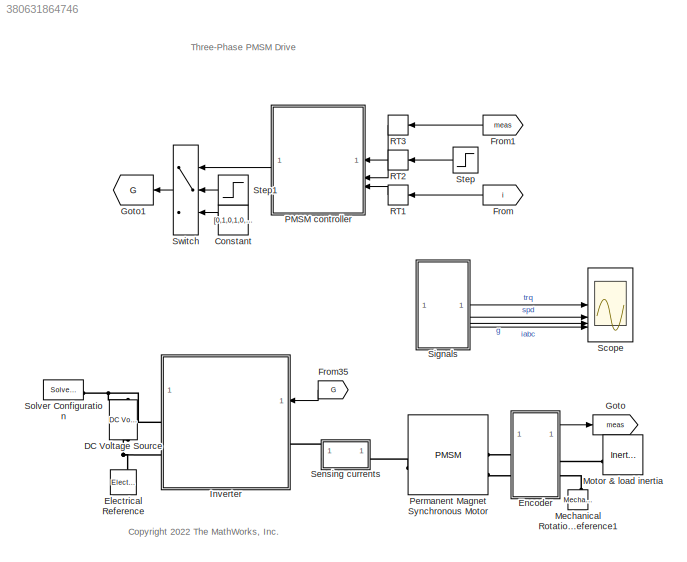
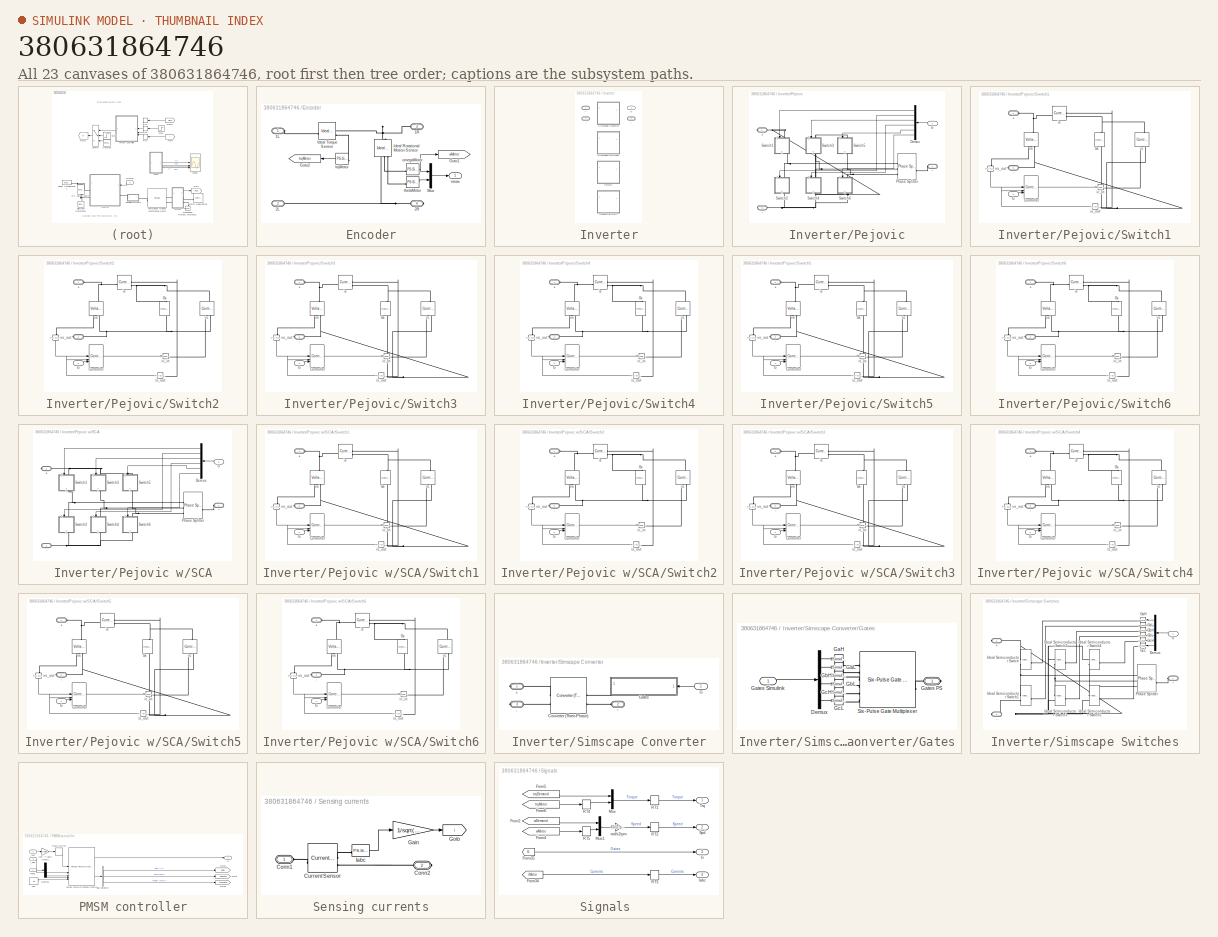
[diagram: thumbnail index - all 23 canvases of the model, root first then tree order]
MODEL slx_380631864746
KIND model
CONFIG AbsTol = 1e-3
CONFIG EnableMultiTasking = off
CONFIG FixedStep = Ts
CONFIG MaxStep = auto
CONFIG MinStep = auto
CONFIG PreLoadFcn = control_data;\npmsm_data;
CONFIG RelTol = 1e-3
CONFIG SampleTimeConstraint = Unconstrained
CONFIG SolverName = FixedStepAuto
CONFIG StartTime = 0.0
CONFIG StopTime = 0.6
BLOCK [Constant] Constant
  SampleTime = -1
  Value = [0,1,0,1,0,1]
BLOCK [Reference] DC Voltage Source  REF=fl_lib/Electrical/Electrical Sources/DC Voltage Source
  NameLocation = right
  SourceBlock = fl_lib/Electrical/Electrical Sources/DC Voltage Source
  SourceType = DC Voltage Source
BLOCK [Reference] Electrical Reference  REF=fl_lib/Electrical/Electrical Elements/Electrical Reference
  NameLocation = right
  SourceBlock = fl_lib/Electrical/Electrical Elements/Electrical Reference
  SourceType = Electrical Reference
BLOCK [SubSystem] Encoder
BLOCK [PMIOPort] Encoder/1L
  Side = Left
BLOCK [PMIOPort] Encoder/1R
  Port = 3
  Side = Right
BLOCK [PMIOPort] Encoder/2L
  Port = 2
  Side = Left
BLOCK [PMIOPort] Encoder/2R
  Port = 4
  Side = Right
BLOCK [Goto] Encoder/Goto1
  GotoTag = wMotor
  NameLocation = top
  TagVisibility = global
BLOCK [Goto] Encoder/Goto2
  GotoTag = trqMotor
  TagVisibility = global
BLOCK [Reference] Encoder/Ideal Rotational Motion Sensor  REF=fl_lib/Mechanical/Mechanical Sensors/Ideal Rotational
Motion Sensor
  NameLocation = right
  SourceBlock = fl_lib/Mechanical/Mechanical Sensors/Ideal Rotational\nMotion Sensor
  SourceType = Ideal Rotational\nMotion Sensor
BLOCK [Reference] Encoder/Ideal Torque Sensor  REF=fl_lib/Mechanical/Mechanical Sensors/Ideal Torque Sensor
  SourceBlock = fl_lib/Mechanical/Mechanical Sensors/Ideal Torque Sensor
  SourceType = Ideal Torque Sensor
BLOCK [Mux] Encoder/Mux
  DisplayOption = bar
  Inputs = 2
BLOCK [Outport] Encoder/meas
  VectorParamsAs1DForOutWhenUnconnected = off
BLOCK [Reference] Encoder/omegaMotor  REF=nesl_utility/PS-Simulink
Converter
  SourceBlock = nesl_utility/PS-Simulink\nConverter
  SourceType = PS-Simulink\nConverter
BLOCK [Reference] Encoder/thetaMotor  REF=nesl_utility/PS-Simulink
Converter
  SourceBlock = nesl_utility/PS-Simulink\nConverter
  SourceType = PS-Simulink\nConverter
BLOCK [Reference] Encoder/trqMotor  REF=nesl_utility/PS-Simulink
Converter
  SourceBlock = nesl_utility/PS-Simulink\nConverter
  SourceType = PS-Simulink\nConverter
BLOCK [From] From
  GotoTag = i
  TagVisibility = global
BLOCK [From] From1
  GotoTag = meas
  TagVisibility = global
BLOCK [From] From35
  GotoTag = G
  TagVisibility = global
BLOCK [Goto] Goto
  GotoTag = meas
  TagVisibility = global
BLOCK [Goto] Goto1
  GotoTag = G
  TagVisibility = global
BLOCK [SubSystem] Inverter
  LabelModeActiveChoice = PejovicSCA
  Variant = on
  VariantControl = Choice
  VariantControlMode = label
BLOCK [PMIOPort] Inverter/+
  Side = Right
BLOCK [PMIOPort] Inverter/-
  Port = 2
  Side = Right
BLOCK [Inport] Inverter/G
BLOCK [SubSystem] Inverter/Pejovic
  VariantControl = Pejovic
BLOCK [SubSystem] Inverter/Pejovic w//SCA
  VariantControl = PejovicSCA
BLOCK [PMIOPort] Inverter/Pejovic w//SCA/+
  Side = Right
BLOCK [PMIOPort] Inverter/Pejovic w//SCA/-
  Port = 3
  Side = Right
BLOCK [Demux] Inverter/Pejovic w//SCA/Demux
  Outputs = 6
BLOCK [Inport] Inverter/Pejovic w//SCA/G
BLOCK [Reference] Inverter/Pejovic w//SCA/Phase Splitter  REF=ee_lib/Connectors &
References/Phase Splitter
  SourceBlock = ee_lib/Connectors &\nReferences/Phase Splitter
  SourceType = Phase Splitter
BLOCK [SubSystem] Inverter/Pejovic w//SCA/Switch1
  CopyFcn = set_param(gcb, 'LinkStatus', 'none');
BLOCK [PMIOPort] Inverter/Pejovic w//SCA/Switch1/+
  Side = Left
BLOCK [PMIOPort] Inverter/Pejovic w//SCA/Switch1/-
  NameLocation = top
  Port = 2
  Side = Right
BLOCK [Reference] Inverter/Pejovic w//SCA/Switch1/Controller  REF=SimscapeFPGAHIL_lib/Linearized Switch Models/Switch/Controller
  SourceBlock = SimscapeFPGAHIL_lib/Linearized Switch Models/Switch/Controller
BLOCK [Inport] Inverter/Pejovic w//SCA/Switch1/G
BLOCK [Reference] Inverter/Pejovic w//SCA/Switch1/Gs  REF=fl_lib/Electrical/Electrical Elements/Resistor
  LibrarySourceBlock = SimscapeFPGAHIL_lib/Linearized Switch Models/Switch/Gs
  NameLocation = right
  SourceBlock = fl_lib/Electrical/Electrical Elements/Resistor
  SourceType = Resistor
BLOCK [Reference] Inverter/Pejovic w//SCA/Switch1/ic  REF=fl_lib/Electrical/Electrical Sources/Controlled Current
Source
  LibrarySourceBlock = SimscapeFPGAHIL_lib/Linearized Switch Models/Switch/ic
  NameLocation = right
  SourceBlock = fl_lib/Electrical/Electrical Sources/Controlled Current\nSource
  SourceType = Controlled Current\nSource
BLOCK [Reference] Inverter/Pejovic w//SCA/Switch1/ic_in  REF=nesl_utility/Simulink-PS
Converter
  LibrarySourceBlock = SimscapeFPGAHIL_lib/Linearized Switch Models/Switch/ic_in
  SourceBlock = nesl_utility/Simulink-PS\nConverter
  SourceType = Simulink-PS\nConverter
BLOCK [Reference] Inverter/Pejovic w//SCA/Switch1/is  REF=fl_lib/Electrical/Electrical Sensors/Current Sensor
  LibrarySourceBlock = SimscapeFPGAHIL_lib/Linearized Switch Models/Switch/is
  SourceBlock = fl_lib/Electrical/Electrical Sensors/Current Sensor
  SourceType = Current Sensor
BLOCK [Reference] Inverter/Pejovic w//SCA/Switch1/is_out  REF=nesl_utility/PS-Simulink
Converter
  LibrarySourceBlock = SimscapeFPGAHIL_lib/Linearized Switch Models/Switch/is_out
  SourceBlock = nesl_utility/PS-Simulink\nConverter
  SourceType = PS-Simulink\nConverter
BLOCK [Reference] Inverter/Pejovic w//SCA/Switch1/vs  REF=fl_lib/Electrical/Electrical Sensors/Voltage Sensor
  LibrarySourceBlock = SimscapeFPGAHIL_lib/Linearized Switch Models/Switch/vs
  NameLocation = left
  SourceBlock = fl_lib/Electrical/Electrical Sensors/Voltage Sensor
  SourceType = Voltage Sensor
BLOCK [Reference] Inverter/Pejovic w//SCA/Switch1/vs_out  REF=nesl_utility/PS-Simulink
Converter
  LibrarySourceBlock = SimscapeFPGAHIL_lib/Linearized Switch Models/Switch/vs_out
  NameLocation = left
  SourceBlock = nesl_utility/PS-Simulink\nConverter
  SourceType = PS-Simulink\nConverter
BLOCK [SubSystem] Inverter/Pejovic w//SCA/Switch2
  CopyFcn = set_param(gcb, 'LinkStatus', 'none');
BLOCK [PMIOPort] Inverter/Pejovic w//SCA/Switch2/+
  Side = Left
BLOCK [PMIOPort] Inverter/Pejovic w//SCA/Switch2/-
  NameLocation = top
  Port = 2
  Side = Right
BLOCK [Reference] Inverter/Pejovic w//SCA/Switch2/Controller  REF=SimscapeFPGAHIL_lib/Linearized Switch Models/Switch/Controller
  SourceBlock = SimscapeFPGAHIL_lib/Linearized Switch Models/Switch/Controller
BLOCK [Inport] Inverter/Pejovic w//SCA/Switch2/G
BLOCK [Reference] Inverter/Pejovic w//SCA/Switch2/Gs  REF=fl_lib/Electrical/Electrical Elements/Resistor
  LibrarySourceBlock = SimscapeFPGAHIL_lib/Linearized Switch Models/Switch/Gs
  NameLocation = right
  SourceBlock = fl_lib/Electrical/Electrical Elements/Resistor
  SourceType = Resistor
BLOCK [Reference] Inverter/Pejovic w//SCA/Switch2/ic  REF=fl_lib/Electrical/Electrical Sources/Controlled Current
Source
  LibrarySourceBlock = SimscapeFPGAHIL_lib/Linearized Switch Models/Switch/ic
  NameLocation = right
  SourceBlock = fl_lib/Electrical/Electrical Sources/Controlled Current\nSource
  SourceType = Controlled Current\nSource
BLOCK [Reference] Inverter/Pejovic w//SCA/Switch2/ic_in  REF=nesl_utility/Simulink-PS
Converter
  LibrarySourceBlock = SimscapeFPGAHIL_lib/Linearized Switch Models/Switch/ic_in
  SourceBlock = nesl_utility/Simulink-PS\nConverter
  SourceType = Simulink-PS\nConverter
BLOCK [Reference] Inverter/Pejovic w//SCA/Switch2/is  REF=fl_lib/Electrical/Electrical Sensors/Current Sensor
  LibrarySourceBlock = SimscapeFPGAHIL_lib/Linearized Switch Models/Switch/is
  SourceBlock = fl_lib/Electrical/Electrical Sensors/Current Sensor
  SourceType = Current Sensor
BLOCK [Reference] Inverter/Pejovic w//SCA/Switch2/is_out  REF=nesl_utility/PS-Simulink
Converter
  LibrarySourceBlock = SimscapeFPGAHIL_lib/Linearized Switch Models/Switch/is_out
  SourceBlock = nesl_utility/PS-Simulink\nConverter
  SourceType = PS-Simulink\nConverter
BLOCK [Reference] Inverter/Pejovic w//SCA/Switch2/vs  REF=fl_lib/Electrical/Electrical Sensors/Voltage Sensor
  LibrarySourceBlock = SimscapeFPGAHIL_lib/Linearized Switch Models/Switch/vs
  NameLocation = left
  SourceBlock = fl_lib/Electrical/Electrical Sensors/Voltage Sensor
  SourceType = Voltage Sensor
BLOCK [Reference] Inverter/Pejovic w//SCA/Switch2/vs_out  REF=nesl_utility/PS-Simulink
Converter
  LibrarySourceBlock = SimscapeFPGAHIL_lib/Linearized Switch Models/Switch/vs_out
  NameLocation = left
  SourceBlock = nesl_utility/PS-Simulink\nConverter
  SourceType = PS-Simulink\nConverter
BLOCK [SubSystem] Inverter/Pejovic w//SCA/Switch3
  CopyFcn = set_param(gcb, 'LinkStatus', 'none');
BLOCK [PMIOPort] Inverter/Pejovic w//SCA/Switch3/+
  Side = Left
BLOCK [PMIOPort] Inverter/Pejovic w//SCA/Switch3/-
  NameLocation = top
  Port = 2
  Side = Right
BLOCK [Reference] Inverter/Pejovic w//SCA/Switch3/Controller  REF=SimscapeFPGAHIL_lib/Linearized Switch Models/Switch/Controller
  SourceBlock = SimscapeFPGAHIL_lib/Linearized Switch Models/Switch/Controller
BLOCK [Inport] Inverter/Pejovic w//SCA/Switch3/G
BLOCK [Reference] Inverter/Pejovic w//SCA/Switch3/Gs  REF=fl_lib/Electrical/Electrical Elements/Resistor
  LibrarySourceBlock = SimscapeFPGAHIL_lib/Linearized Switch Models/Switch/Gs
  NameLocation = right
  SourceBlock = fl_lib/Electrical/Electrical Elements/Resistor
  SourceType = Resistor
BLOCK [Reference] Inverter/Pejovic w//SCA/Switch3/ic  REF=fl_lib/Electrical/Electrical Sources/Controlled Current
Source
  LibrarySourceBlock = SimscapeFPGAHIL_lib/Linearized Switch Models/Switch/ic
  NameLocation = right
  SourceBlock = fl_lib/Electrical/Electrical Sources/Controlled Current\nSource
  SourceType = Controlled Current\nSource
BLOCK [Reference] Inverter/Pejovic w//SCA/Switch3/ic_in  REF=nesl_utility/Simulink-PS
Converter
  LibrarySourceBlock = SimscapeFPGAHIL_lib/Linearized Switch Models/Switch/ic_in
  SourceBlock = nesl_utility/Simulink-PS\nConverter
  SourceType = Simulink-PS\nConverter
BLOCK [Reference] Inverter/Pejovic w//SCA/Switch3/is  REF=fl_lib/Electrical/Electrical Sensors/Current Sensor
  LibrarySourceBlock = SimscapeFPGAHIL_lib/Linearized Switch Models/Switch/is
  SourceBlock = fl_lib/Electrical/Electrical Sensors/Current Sensor
  SourceType = Current Sensor
BLOCK [Reference] Inverter/Pejovic w//SCA/Switch3/is_out  REF=nesl_utility/PS-Simulink
Converter
  LibrarySourceBlock = SimscapeFPGAHIL_lib/Linearized Switch Models/Switch/is_out
  SourceBlock = nesl_utility/PS-Simulink\nConverter
  SourceType = PS-Simulink\nConverter
BLOCK [Reference] Inverter/Pejovic w//SCA/Switch3/vs  REF=fl_lib/Electrical/Electrical Sensors/Voltage Sensor
  LibrarySourceBlock = SimscapeFPGAHIL_lib/Linearized Switch Models/Switch/vs
  NameLocation = left
  SourceBlock = fl_lib/Electrical/Electrical Sensors/Voltage Sensor
  SourceType = Voltage Sensor
BLOCK [Reference] Inverter/Pejovic w//SCA/Switch3/vs_out  REF=nesl_utility/PS-Simulink
Converter
  LibrarySourceBlock = SimscapeFPGAHIL_lib/Linearized Switch Models/Switch/vs_out
  NameLocation = left
  SourceBlock = nesl_utility/PS-Simulink\nConverter
  SourceType = PS-Simulink\nConverter
BLOCK [SubSystem] Inverter/Pejovic w//SCA/Switch4
  CopyFcn = set_param(gcb, 'LinkStatus', 'none');
BLOCK [PMIOPort] Inverter/Pejovic w//SCA/Switch4/+
  Side = Left
BLOCK [PMIOPort] Inverter/Pejovic w//SCA/Switch4/-
  NameLocation = top
  Port = 2
  Side = Right
BLOCK [Reference] Inverter/Pejovic w//SCA/Switch4/Controller  REF=SimscapeFPGAHIL_lib/Linearized Switch Models/Switch/Controller
  SourceBlock = SimscapeFPGAHIL_lib/Linearized Switch Models/Switch/Controller
BLOCK [Inport] Inverter/Pejovic w//SCA/Switch4/G
BLOCK [Reference] Inverter/Pejovic w//SCA/Switch4/Gs  REF=fl_lib/Electrical/Electrical Elements/Resistor
  LibrarySourceBlock = SimscapeFPGAHIL_lib/Linearized Switch Models/Switch/Gs
  NameLocation = right
  SourceBlock = fl_lib/Electrical/Electrical Elements/Resistor
  SourceType = Resistor
BLOCK [Reference] Inverter/Pejovic w//SCA/Switch4/ic  REF=fl_lib/Electrical/Electrical Sources/Controlled Current
Source
  LibrarySourceBlock = SimscapeFPGAHIL_lib/Linearized Switch Models/Switch/ic
  NameLocation = right
  SourceBlock = fl_lib/Electrical/Electrical Sources/Controlled Current\nSource
  SourceType = Controlled Current\nSource
BLOCK [Reference] Inverter/Pejovic w//SCA/Switch4/ic_in  REF=nesl_utility/Simulink-PS
Converter
  LibrarySourceBlock = SimscapeFPGAHIL_lib/Linearized Switch Models/Switch/ic_in
  SourceBlock = nesl_utility/Simulink-PS\nConverter
  SourceType = Simulink-PS\nConverter
BLOCK [Reference] Inverter/Pejovic w//SCA/Switch4/is  REF=fl_lib/Electrical/Electrical Sensors/Current Sensor
  LibrarySourceBlock = SimscapeFPGAHIL_lib/Linearized Switch Models/Switch/is
  SourceBlock = fl_lib/Electrical/Electrical Sensors/Current Sensor
  SourceType = Current Sensor
BLOCK [Reference] Inverter/Pejovic w//SCA/Switch4/is_out  REF=nesl_utility/PS-Simulink
Converter
  LibrarySourceBlock = SimscapeFPGAHIL_lib/Linearized Switch Models/Switch/is_out
  SourceBlock = nesl_utility/PS-Simulink\nConverter
  SourceType = PS-Simulink\nConverter
BLOCK [Reference] Inverter/Pejovic w//SCA/Switch4/vs  REF=fl_lib/Electrical/Electrical Sensors/Voltage Sensor
  LibrarySourceBlock = SimscapeFPGAHIL_lib/Linearized Switch Models/Switch/vs
  NameLocation = left
  SourceBlock = fl_lib/Electrical/Electrical Sensors/Voltage Sensor
  SourceType = Voltage Sensor
BLOCK [Reference] Inverter/Pejovic w//SCA/Switch4/vs_out  REF=nesl_utility/PS-Simulink
Converter
  LibrarySourceBlock = SimscapeFPGAHIL_lib/Linearized Switch Models/Switch/vs_out
  NameLocation = left
  SourceBlock = nesl_utility/PS-Simulink\nConverter
  SourceType = PS-Simulink\nConverter
BLOCK [SubSystem] Inverter/Pejovic w//SCA/Switch5
  CopyFcn = set_param(gcb, 'LinkStatus', 'none');
BLOCK [PMIOPort] Inverter/Pejovic w//SCA/Switch5/+
  Side = Left
BLOCK [PMIOPort] Inverter/Pejovic w//SCA/Switch5/-
  NameLocation = top
  Port = 2
  Side = Right
BLOCK [Reference] Inverter/Pejovic w//SCA/Switch5/Controller  REF=SimscapeFPGAHIL_lib/Linearized Switch Models/Switch/Controller
  SourceBlock = SimscapeFPGAHIL_lib/Linearized Switch Models/Switch/Controller
BLOCK [Inport] Inverter/Pejovic w//SCA/Switch5/G
BLOCK [Reference] Inverter/Pejovic w//SCA/Switch5/Gs  REF=fl_lib/Electrical/Electrical Elements/Resistor
  LibrarySourceBlock = SimscapeFPGAHIL_lib/Linearized Switch Models/Switch/Gs
  NameLocation = right
  SourceBlock = fl_lib/Electrical/Electrical Elements/Resistor
  SourceType = Resistor
BLOCK [Reference] Inverter/Pejovic w//SCA/Switch5/ic  REF=fl_lib/Electrical/Electrical Sources/Controlled Current
Source
  LibrarySourceBlock = SimscapeFPGAHIL_lib/Linearized Switch Models/Switch/ic
  NameLocation = right
  SourceBlock = fl_lib/Electrical/Electrical Sources/Controlled Current\nSource
  SourceType = Controlled Current\nSource
BLOCK [Reference] Inverter/Pejovic w//SCA/Switch5/ic_in  REF=nesl_utility/Simulink-PS
Converter
  LibrarySourceBlock = SimscapeFPGAHIL_lib/Linearized Switch Models/Switch/ic_in
  SourceBlock = nesl_utility/Simulink-PS\nConverter
  SourceType = Simulink-PS\nConverter
BLOCK [Reference] Inverter/Pejovic w//SCA/Switch5/is  REF=fl_lib/Electrical/Electrical Sensors/Current Sensor
  LibrarySourceBlock = SimscapeFPGAHIL_lib/Linearized Switch Models/Switch/is
  SourceBlock = fl_lib/Electrical/Electrical Sensors/Current Sensor
  SourceType = Current Sensor
BLOCK [Reference] Inverter/Pejovic w//SCA/Switch5/is_out  REF=nesl_utility/PS-Simulink
Converter
  LibrarySourceBlock = SimscapeFPGAHIL_lib/Linearized Switch Models/Switch/is_out
  SourceBlock = nesl_utility/PS-Simulink\nConverter
  SourceType = PS-Simulink\nConverter
BLOCK [Reference] Inverter/Pejovic w//SCA/Switch5/vs  REF=fl_lib/Electrical/Electrical Sensors/Voltage Sensor
  LibrarySourceBlock = SimscapeFPGAHIL_lib/Linearized Switch Models/Switch/vs
  NameLocation = left
  SourceBlock = fl_lib/Electrical/Electrical Sensors/Voltage Sensor
  SourceType = Voltage Sensor
BLOCK [Reference] Inverter/Pejovic w//SCA/Switch5/vs_out  REF=nesl_utility/PS-Simulink
Converter
  LibrarySourceBlock = SimscapeFPGAHIL_lib/Linearized Switch Models/Switch/vs_out
  NameLocation = left
  SourceBlock = nesl_utility/PS-Simulink\nConverter
  SourceType = PS-Simulink\nConverter
BLOCK [SubSystem] Inverter/Pejovic w//SCA/Switch6
  CopyFcn = set_param(gcb, 'LinkStatus', 'none');
BLOCK [PMIOPort] Inverter/Pejovic w//SCA/Switch6/+
  Side = Left
BLOCK [PMIOPort] Inverter/Pejovic w//SCA/Switch6/-
  NameLocation = top
  Port = 2
  Side = Right
BLOCK [Reference] Inverter/Pejovic w//SCA/Switch6/Controller  REF=SimscapeFPGAHIL_lib/Linearized Switch Models/Switch/Controller
  SourceBlock = SimscapeFPGAHIL_lib/Linearized Switch Models/Switch/Controller
BLOCK [Inport] Inverter/Pejovic w//SCA/Switch6/G
BLOCK [Reference] Inverter/Pejovic w//SCA/Switch6/Gs  REF=fl_lib/Electrical/Electrical Elements/Resistor
  LibrarySourceBlock = SimscapeFPGAHIL_lib/Linearized Switch Models/Switch/Gs
  NameLocation = right
  SourceBlock = fl_lib/Electrical/Electrical Elements/Resistor
  SourceType = Resistor
BLOCK [Reference] Inverter/Pejovic w//SCA/Switch6/ic  REF=fl_lib/Electrical/Electrical Sources/Controlled Current
Source
  LibrarySourceBlock = SimscapeFPGAHIL_lib/Linearized Switch Models/Switch/ic
  NameLocation = right
  SourceBlock = fl_lib/Electrical/Electrical Sources/Controlled Current\nSource
  SourceType = Controlled Current\nSource
BLOCK [Reference] Inverter/Pejovic w//SCA/Switch6/ic_in  REF=nesl_utility/Simulink-PS
Converter
  LibrarySourceBlock = SimscapeFPGAHIL_lib/Linearized Switch Models/Switch/ic_in
  SourceBlock = nesl_utility/Simulink-PS\nConverter
  SourceType = Simulink-PS\nConverter
BLOCK [Reference] Inverter/Pejovic w//SCA/Switch6/is  REF=fl_lib/Electrical/Electrical Sensors/Current Sensor
  LibrarySourceBlock = SimscapeFPGAHIL_lib/Linearized Switch Models/Switch/is
  SourceBlock = fl_lib/Electrical/Electrical Sensors/Current Sensor
  SourceType = Current Sensor
BLOCK [Reference] Inverter/Pejovic w//SCA/Switch6/is_out  REF=nesl_utility/PS-Simulink
Converter
  LibrarySourceBlock = SimscapeFPGAHIL_lib/Linearized Switch Models/Switch/is_out
  SourceBlock = nesl_utility/PS-Simulink\nConverter
  SourceType = PS-Simulink\nConverter
BLOCK [Reference] Inverter/Pejovic w//SCA/Switch6/vs  REF=fl_lib/Electrical/Electrical Sensors/Voltage Sensor
  LibrarySourceBlock = SimscapeFPGAHIL_lib/Linearized Switch Models/Switch/vs
  NameLocation = left
  SourceBlock = fl_lib/Electrical/Electrical Sensors/Voltage Sensor
  SourceType = Voltage Sensor
BLOCK [Reference] Inverter/Pejovic w//SCA/Switch6/vs_out  REF=nesl_utility/PS-Simulink
Converter
  LibrarySourceBlock = SimscapeFPGAHIL_lib/Linearized Switch Models/Switch/vs_out
  NameLocation = left
  SourceBlock = nesl_utility/PS-Simulink\nConverter
  SourceType = PS-Simulink\nConverter
BLOCK [PMIOPort] Inverter/Pejovic w//SCA/~
  Port = 2
  Side = Left
BLOCK [PMIOPort] Inverter/Pejovic/+
  Side = Right
BLOCK [PMIOPort] Inverter/Pejovic/-
  Port = 3
  Side = Right
BLOCK [Demux] Inverter/Pejovic/Demux
  Outputs = 6
BLOCK [Inport] Inverter/Pejovic/G
BLOCK [Reference] Inverter/Pejovic/Phase Splitter  REF=ee_lib/Connectors &
References/Phase Splitter
  SourceBlock = ee_lib/Connectors &\nReferences/Phase Splitter
  SourceType = Phase Splitter
BLOCK [SubSystem] Inverter/Pejovic/Switch1
  CopyFcn = set_param(gcb, 'LinkStatus', 'none');
  NameLocation = left
BLOCK [PMIOPort] Inverter/Pejovic/Switch1/+
  Side = Left
BLOCK [PMIOPort] Inverter/Pejovic/Switch1/-
  NameLocation = top
  Port = 2
  Side = Right
BLOCK [Reference] Inverter/Pejovic/Switch1/Controller  REF=SimscapeFPGAHIL_lib/Linearized Switch Models/Switch/Controller
  SourceBlock = SimscapeFPGAHIL_lib/Linearized Switch Models/Switch/Controller
BLOCK [Inport] Inverter/Pejovic/Switch1/G
BLOCK [Reference] Inverter/Pejovic/Switch1/Gs  REF=fl_lib/Electrical/Electrical Elements/Resistor
  LibrarySourceBlock = SimscapeFPGAHIL_lib/Linearized Switch Models/Switch/Gs
  NameLocation = right
  SourceBlock = fl_lib/Electrical/Electrical Elements/Resistor
  SourceType = Resistor
BLOCK [Reference] Inverter/Pejovic/Switch1/ic  REF=fl_lib/Electrical/Electrical Sources/Controlled Current
Source
  LibrarySourceBlock = SimscapeFPGAHIL_lib/Linearized Switch Models/Switch/ic
  NameLocation = right
  SourceBlock = fl_lib/Electrical/Electrical Sources/Controlled Current\nSource
  SourceType = Controlled Current\nSource
BLOCK [Reference] Inverter/Pejovic/Switch1/ic_in  REF=nesl_utility/Simulink-PS
Converter
  LibrarySourceBlock = SimscapeFPGAHIL_lib/Linearized Switch Models/Switch/ic_in
  SourceBlock = nesl_utility/Simulink-PS\nConverter
  SourceType = Simulink-PS\nConverter
BLOCK [Reference] Inverter/Pejovic/Switch1/is  REF=fl_lib/Electrical/Electrical Sensors/Current Sensor
  LibrarySourceBlock = SimscapeFPGAHIL_lib/Linearized Switch Models/Switch/is
  SourceBlock = fl_lib/Electrical/Electrical Sensors/Current Sensor
  SourceType = Current Sensor
BLOCK [Reference] Inverter/Pejovic/Switch1/is_out  REF=nesl_utility/PS-Simulink
Converter
  LibrarySourceBlock = SimscapeFPGAHIL_lib/Linearized Switch Models/Switch/is_out
  SourceBlock = nesl_utility/PS-Simulink\nConverter
  SourceType = PS-Simulink\nConverter
BLOCK [Reference] Inverter/Pejovic/Switch1/vs  REF=fl_lib/Electrical/Electrical Sensors/Voltage Sensor
  LibrarySourceBlock = SimscapeFPGAHIL_lib/Linearized Switch Models/Switch/vs
  NameLocation = left
  SourceBlock = fl_lib/Electrical/Electrical Sensors/Voltage Sensor
  SourceType = Voltage Sensor
BLOCK [Reference] Inverter/Pejovic/Switch1/vs_out  REF=nesl_utility/PS-Simulink
Converter
  LibrarySourceBlock = SimscapeFPGAHIL_lib/Linearized Switch Models/Switch/vs_out
  NameLocation = left
  SourceBlock = nesl_utility/PS-Simulink\nConverter
  SourceType = PS-Simulink\nConverter
BLOCK [SubSystem] Inverter/Pejovic/Switch2
  CopyFcn = set_param(gcb, 'LinkStatus', 'none');
  NameLocation = left
BLOCK [PMIOPort] Inverter/Pejovic/Switch2/+
  Side = Left
BLOCK [PMIOPort] Inverter/Pejovic/Switch2/-
  NameLocation = top
  Port = 2
  Side = Right
BLOCK [Reference] Inverter/Pejovic/Switch2/Controller  REF=SimscapeFPGAHIL_lib/Linearized Switch Models/Switch/Controller
  SourceBlock = SimscapeFPGAHIL_lib/Linearized Switch Models/Switch/Controller
BLOCK [Inport] Inverter/Pejovic/Switch2/G
BLOCK [Reference] Inverter/Pejovic/Switch2/Gs  REF=fl_lib/Electrical/Electrical Elements/Resistor
  LibrarySourceBlock = SimscapeFPGAHIL_lib/Linearized Switch Models/Switch/Gs
  NameLocation = right
  SourceBlock = fl_lib/Electrical/Electrical Elements/Resistor
  SourceType = Resistor
BLOCK [Reference] Inverter/Pejovic/Switch2/ic  REF=fl_lib/Electrical/Electrical Sources/Controlled Current
Source
  LibrarySourceBlock = SimscapeFPGAHIL_lib/Linearized Switch Models/Switch/ic
  NameLocation = right
  SourceBlock = fl_lib/Electrical/Electrical Sources/Controlled Current\nSource
  SourceType = Controlled Current\nSource
BLOCK [Reference] Inverter/Pejovic/Switch2/ic_in  REF=nesl_utility/Simulink-PS
Converter
  LibrarySourceBlock = SimscapeFPGAHIL_lib/Linearized Switch Models/Switch/ic_in
  SourceBlock = nesl_utility/Simulink-PS\nConverter
  SourceType = Simulink-PS\nConverter
BLOCK [Reference] Inverter/Pejovic/Switch2/is  REF=fl_lib/Electrical/Electrical Sensors/Current Sensor
  LibrarySourceBlock = SimscapeFPGAHIL_lib/Linearized Switch Models/Switch/is
  SourceBlock = fl_lib/Electrical/Electrical Sensors/Current Sensor
  SourceType = Current Sensor
BLOCK [Reference] Inverter/Pejovic/Switch2/is_out  REF=nesl_utility/PS-Simulink
Converter
  LibrarySourceBlock = SimscapeFPGAHIL_lib/Linearized Switch Models/Switch/is_out
  SourceBlock = nesl_utility/PS-Simulink\nConverter
  SourceType = PS-Simulink\nConverter
BLOCK [Reference] Inverter/Pejovic/Switch2/vs  REF=fl_lib/Electrical/Electrical Sensors/Voltage Sensor
  LibrarySourceBlock = SimscapeFPGAHIL_lib/Linearized Switch Models/Switch/vs
  NameLocation = left
  SourceBlock = fl_lib/Electrical/Electrical Sensors/Voltage Sensor
  SourceType = Voltage Sensor
BLOCK [Reference] Inverter/Pejovic/Switch2/vs_out  REF=nesl_utility/PS-Simulink
Converter
  LibrarySourceBlock = SimscapeFPGAHIL_lib/Linearized Switch Models/Switch/vs_out
  NameLocation = left
  SourceBlock = nesl_utility/PS-Simulink\nConverter
  SourceType = PS-Simulink\nConverter
BLOCK [SubSystem] Inverter/Pejovic/Switch3
  CopyFcn = set_param(gcb, 'LinkStatus', 'none');
  NameLocation = left
BLOCK [PMIOPort] Inverter/Pejovic/Switch3/+
  Side = Left
BLOCK [PMIOPort] Inverter/Pejovic/Switch3/-
  NameLocation = top
  Port = 2
  Side = Right
BLOCK [Reference] Inverter/Pejovic/Switch3/Controller  REF=SimscapeFPGAHIL_lib/Linearized Switch Models/Switch/Controller
  SourceBlock = SimscapeFPGAHIL_lib/Linearized Switch Models/Switch/Controller
BLOCK [Inport] Inverter/Pejovic/Switch3/G
BLOCK [Reference] Inverter/Pejovic/Switch3/Gs  REF=fl_lib/Electrical/Electrical Elements/Resistor
  LibrarySourceBlock = SimscapeFPGAHIL_lib/Linearized Switch Models/Switch/Gs
  NameLocation = right
  SourceBlock = fl_lib/Electrical/Electrical Elements/Resistor
  SourceType = Resistor
BLOCK [Reference] Inverter/Pejovic/Switch3/ic  REF=fl_lib/Electrical/Electrical Sources/Controlled Current
Source
  LibrarySourceBlock = SimscapeFPGAHIL_lib/Linearized Switch Models/Switch/ic
  NameLocation = right
  SourceBlock = fl_lib/Electrical/Electrical Sources/Controlled Current\nSource
  SourceType = Controlled Current\nSource
BLOCK [Reference] Inverter/Pejovic/Switch3/ic_in  REF=nesl_utility/Simulink-PS
Converter
  LibrarySourceBlock = SimscapeFPGAHIL_lib/Linearized Switch Models/Switch/ic_in
  SourceBlock = nesl_utility/Simulink-PS\nConverter
  SourceType = Simulink-PS\nConverter
BLOCK [Reference] Inverter/Pejovic/Switch3/is  REF=fl_lib/Electrical/Electrical Sensors/Current Sensor
  LibrarySourceBlock = SimscapeFPGAHIL_lib/Linearized Switch Models/Switch/is
  SourceBlock = fl_lib/Electrical/Electrical Sensors/Current Sensor
  SourceType = Current Sensor
BLOCK [Reference] Inverter/Pejovic/Switch3/is_out  REF=nesl_utility/PS-Simulink
Converter
  LibrarySourceBlock = SimscapeFPGAHIL_lib/Linearized Switch Models/Switch/is_out
  SourceBlock = nesl_utility/PS-Simulink\nConverter
  SourceType = PS-Simulink\nConverter
BLOCK [Reference] Inverter/Pejovic/Switch3/vs  REF=fl_lib/Electrical/Electrical Sensors/Voltage Sensor
  LibrarySourceBlock = SimscapeFPGAHIL_lib/Linearized Switch Models/Switch/vs
  NameLocation = left
  SourceBlock = fl_lib/Electrical/Electrical Sensors/Voltage Sensor
  SourceType = Voltage Sensor
BLOCK [Reference] Inverter/Pejovic/Switch3/vs_out  REF=nesl_utility/PS-Simulink
Converter
  LibrarySourceBlock = SimscapeFPGAHIL_lib/Linearized Switch Models/Switch/vs_out
  NameLocation = left
  SourceBlock = nesl_utility/PS-Simulink\nConverter
  SourceType = PS-Simulink\nConverter
BLOCK [SubSystem] Inverter/Pejovic/Switch4
  CopyFcn = set_param(gcb, 'LinkStatus', 'none');
  NameLocation = left
BLOCK [PMIOPort] Inverter/Pejovic/Switch4/+
  Side = Left
BLOCK [PMIOPort] Inverter/Pejovic/Switch4/-
  NameLocation = top
  Port = 2
  Side = Right
BLOCK [Reference] Inverter/Pejovic/Switch4/Controller  REF=SimscapeFPGAHIL_lib/Linearized Switch Models/Switch/Controller
  SourceBlock = SimscapeFPGAHIL_lib/Linearized Switch Models/Switch/Controller
BLOCK [Inport] Inverter/Pejovic/Switch4/G
BLOCK [Reference] Inverter/Pejovic/Switch4/Gs  REF=fl_lib/Electrical/Electrical Elements/Resistor
  LibrarySourceBlock = SimscapeFPGAHIL_lib/Linearized Switch Models/Switch/Gs
  NameLocation = right
  SourceBlock = fl_lib/Electrical/Electrical Elements/Resistor
  SourceType = Resistor
BLOCK [Reference] Inverter/Pejovic/Switch4/ic  REF=fl_lib/Electrical/Electrical Sources/Controlled Current
Source
  LibrarySourceBlock = SimscapeFPGAHIL_lib/Linearized Switch Models/Switch/ic
  NameLocation = right
  SourceBlock = fl_lib/Electrical/Electrical Sources/Controlled Current\nSource
  SourceType = Controlled Current\nSource
BLOCK [Reference] Inverter/Pejovic/Switch4/ic_in  REF=nesl_utility/Simulink-PS
Converter
  LibrarySourceBlock = SimscapeFPGAHIL_lib/Linearized Switch Models/Switch/ic_in
  SourceBlock = nesl_utility/Simulink-PS\nConverter
  SourceType = Simulink-PS\nConverter
BLOCK [Reference] Inverter/Pejovic/Switch4/is  REF=fl_lib/Electrical/Electrical Sensors/Current Sensor
  LibrarySourceBlock = SimscapeFPGAHIL_lib/Linearized Switch Models/Switch/is
  SourceBlock = fl_lib/Electrical/Electrical Sensors/Current Sensor
  SourceType = Current Sensor
BLOCK [Reference] Inverter/Pejovic/Switch4/is_out  REF=nesl_utility/PS-Simulink
Converter
  LibrarySourceBlock = SimscapeFPGAHIL_lib/Linearized Switch Models/Switch/is_out
  SourceBlock = nesl_utility/PS-Simulink\nConverter
  SourceType = PS-Simulink\nConverter
BLOCK [Reference] Inverter/Pejovic/Switch4/vs  REF=fl_lib/Electrical/Electrical Sensors/Voltage Sensor
  LibrarySourceBlock = SimscapeFPGAHIL_lib/Linearized Switch Models/Switch/vs
  NameLocation = left
  SourceBlock = fl_lib/Electrical/Electrical Sensors/Voltage Sensor
  SourceType = Voltage Sensor
BLOCK [Reference] Inverter/Pejovic/Switch4/vs_out  REF=nesl_utility/PS-Simulink
Converter
  LibrarySourceBlock = SimscapeFPGAHIL_lib/Linearized Switch Models/Switch/vs_out
  NameLocation = left
  SourceBlock = nesl_utility/PS-Simulink\nConverter
  SourceType = PS-Simulink\nConverter
BLOCK [SubSystem] Inverter/Pejovic/Switch5
  CopyFcn = set_param(gcb, 'LinkStatus', 'none');
  NameLocation = left
BLOCK [PMIOPort] Inverter/Pejovic/Switch5/+
  Side = Left
BLOCK [PMIOPort] Inverter/Pejovic/Switch5/-
  NameLocation = top
  Port = 2
  Side = Right
BLOCK [Reference] Inverter/Pejovic/Switch5/Controller  REF=SimscapeFPGAHIL_lib/Linearized Switch Models/Switch/Controller
  SourceBlock = SimscapeFPGAHIL_lib/Linearized Switch Models/Switch/Controller
BLOCK [Inport] Inverter/Pejovic/Switch5/G
BLOCK [Reference] Inverter/Pejovic/Switch5/Gs  REF=fl_lib/Electrical/Electrical Elements/Resistor
  LibrarySourceBlock = SimscapeFPGAHIL_lib/Linearized Switch Models/Switch/Gs
  NameLocation = right
  SourceBlock = fl_lib/Electrical/Electrical Elements/Resistor
  SourceType = Resistor
BLOCK [Reference] Inverter/Pejovic/Switch5/ic  REF=fl_lib/Electrical/Electrical Sources/Controlled Current
Source
  LibrarySourceBlock = SimscapeFPGAHIL_lib/Linearized Switch Models/Switch/ic
  NameLocation = right
  SourceBlock = fl_lib/Electrical/Electrical Sources/Controlled Current\nSource
  SourceType = Controlled Current\nSource
BLOCK [Reference] Inverter/Pejovic/Switch5/ic_in  REF=nesl_utility/Simulink-PS
Converter
  LibrarySourceBlock = SimscapeFPGAHIL_lib/Linearized Switch Models/Switch/ic_in
  SourceBlock = nesl_utility/Simulink-PS\nConverter
  SourceType = Simulink-PS\nConverter
BLOCK [Reference] Inverter/Pejovic/Switch5/is  REF=fl_lib/Electrical/Electrical Sensors/Current Sensor
  LibrarySourceBlock = SimscapeFPGAHIL_lib/Linearized Switch Models/Switch/is
  SourceBlock = fl_lib/Electrical/Electrical Sensors/Current Sensor
  SourceType = Current Sensor
BLOCK [Reference] Inverter/Pejovic/Switch5/is_out  REF=nesl_utility/PS-Simulink
Converter
  LibrarySourceBlock = SimscapeFPGAHIL_lib/Linearized Switch Models/Switch/is_out
  SourceBlock = nesl_utility/PS-Simulink\nConverter
  SourceType = PS-Simulink\nConverter
BLOCK [Reference] Inverter/Pejovic/Switch5/vs  REF=fl_lib/Electrical/Electrical Sensors/Voltage Sensor
  LibrarySourceBlock = SimscapeFPGAHIL_lib/Linearized Switch Models/Switch/vs
  NameLocation = left
  SourceBlock = fl_lib/Electrical/Electrical Sensors/Voltage Sensor
  SourceType = Voltage Sensor
BLOCK [Reference] Inverter/Pejovic/Switch5/vs_out  REF=nesl_utility/PS-Simulink
Converter
  LibrarySourceBlock = SimscapeFPGAHIL_lib/Linearized Switch Models/Switch/vs_out
  NameLocation = left
  SourceBlock = nesl_utility/PS-Simulink\nConverter
  SourceType = PS-Simulink\nConverter
BLOCK [SubSystem] Inverter/Pejovic/Switch6
  CopyFcn = set_param(gcb, 'LinkStatus', 'none');
  NameLocation = left
BLOCK [PMIOPort] Inverter/Pejovic/Switch6/+
  Side = Left
BLOCK [PMIOPort] Inverter/Pejovic/Switch6/-
  NameLocation = top
  Port = 2
  Side = Right
BLOCK [Reference] Inverter/Pejovic/Switch6/Controller  REF=SimscapeFPGAHIL_lib/Linearized Switch Models/Switch/Controller
  SourceBlock = SimscapeFPGAHIL_lib/Linearized Switch Models/Switch/Controller
BLOCK [Inport] Inverter/Pejovic/Switch6/G
BLOCK [Reference] Inverter/Pejovic/Switch6/Gs  REF=fl_lib/Electrical/Electrical Elements/Resistor
  LibrarySourceBlock = SimscapeFPGAHIL_lib/Linearized Switch Models/Switch/Gs
  NameLocation = right
  SourceBlock = fl_lib/Electrical/Electrical Elements/Resistor
  SourceType = Resistor
BLOCK [Reference] Inverter/Pejovic/Switch6/ic  REF=fl_lib/Electrical/Electrical Sources/Controlled Current
Source
  LibrarySourceBlock = SimscapeFPGAHIL_lib/Linearized Switch Models/Switch/ic
  NameLocation = right
  SourceBlock = fl_lib/Electrical/Electrical Sources/Controlled Current\nSource
  SourceType = Controlled Current\nSource
BLOCK [Reference] Inverter/Pejovic/Switch6/ic_in  REF=nesl_utility/Simulink-PS
Converter
  LibrarySourceBlock = SimscapeFPGAHIL_lib/Linearized Switch Models/Switch/ic_in
  SourceBlock = nesl_utility/Simulink-PS\nConverter
  SourceType = Simulink-PS\nConverter
BLOCK [Reference] Inverter/Pejovic/Switch6/is  REF=fl_lib/Electrical/Electrical Sensors/Current Sensor
  LibrarySourceBlock = SimscapeFPGAHIL_lib/Linearized Switch Models/Switch/is
  SourceBlock = fl_lib/Electrical/Electrical Sensors/Current Sensor
  SourceType = Current Sensor
BLOCK [Reference] Inverter/Pejovic/Switch6/is_out  REF=nesl_utility/PS-Simulink
Converter
  LibrarySourceBlock = SimscapeFPGAHIL_lib/Linearized Switch Models/Switch/is_out
  SourceBlock = nesl_utility/PS-Simulink\nConverter
  SourceType = PS-Simulink\nConverter
BLOCK [Reference] Inverter/Pejovic/Switch6/vs  REF=fl_lib/Electrical/Electrical Sensors/Voltage Sensor
  LibrarySourceBlock = SimscapeFPGAHIL_lib/Linearized Switch Models/Switch/vs
  NameLocation = left
  SourceBlock = fl_lib/Electrical/Electrical Sensors/Voltage Sensor
  SourceType = Voltage Sensor
BLOCK [Reference] Inverter/Pejovic/Switch6/vs_out  REF=nesl_utility/PS-Simulink
Converter
  LibrarySourceBlock = SimscapeFPGAHIL_lib/Linearized Switch Models/Switch/vs_out
  NameLocation = left
  SourceBlock = nesl_utility/PS-Simulink\nConverter
  SourceType = PS-Simulink\nConverter
BLOCK [PMIOPort] Inverter/Pejovic/~
  Port = 2
  Side = Left
BLOCK [SubSystem] Inverter/Simscape Converter
  VariantControl = SimscapeConv
BLOCK [PMIOPort] Inverter/Simscape Converter/+
  Side = Right
BLOCK [PMIOPort] Inverter/Simscape Converter/-
  Port = 3
  Side = Right
BLOCK [Reference] Inverter/Simscape Converter/Converter (Three-Phase)  REF=ee_lib/Semiconductors &
Converters/Converters/Converter
(Three-Phase)
  SourceBlock = ee_lib/Semiconductors &\nConverters/Converters/Converter\n(Three-Phase)
  SourceType = Converter\n(Three-Phase)
BLOCK [Inport] Inverter/Simscape Converter/G
BLOCK [SubSystem] Inverter/Simscape Converter/Gates
BLOCK [Demux] Inverter/Simscape Converter/Gates/Demux
  Outputs = 6
BLOCK [Reference] Inverter/Simscape Converter/Gates/GaH  REF=nesl_utility/Simulink-PS
Converter
  SourceBlock = nesl_utility/Simulink-PS\nConverter
  SourceType = Simulink-PS\nConverter
BLOCK [Reference] Inverter/Simscape Converter/Gates/GaL  REF=nesl_utility/Simulink-PS
Converter
  SourceBlock = nesl_utility/Simulink-PS\nConverter
  SourceType = Simulink-PS\nConverter
BLOCK [PMIOPort] Inverter/Simscape Converter/Gates/Gates PS
  Side = Right
BLOCK [Inport] Inverter/Simscape Converter/Gates/Gates Simulink
BLOCK [Reference] Inverter/Simscape Converter/Gates/GbH  REF=nesl_utility/Simulink-PS
Converter
  SourceBlock = nesl_utility/Simulink-PS\nConverter
  SourceType = Simulink-PS\nConverter
BLOCK [Reference] Inverter/Simscape Converter/Gates/GbL  REF=nesl_utility/Simulink-PS
Converter
  SourceBlock = nesl_utility/Simulink-PS\nConverter
  SourceType = Simulink-PS\nConverter
BLOCK [Reference] Inverter/Simscape Converter/Gates/GcH  REF=nesl_utility/Simulink-PS
Converter
  SourceBlock = nesl_utility/Simulink-PS\nConverter
  SourceType = Simulink-PS\nConverter
BLOCK [Reference] Inverter/Simscape Converter/Gates/GcL  REF=nesl_utility/Simulink-PS
Converter
  SourceBlock = nesl_utility/Simulink-PS\nConverter
  SourceType = Simulink-PS\nConverter
BLOCK [Reference] Inverter/Simscape Converter/Gates/Six-Pulse Gate Multiplexer  REF=ee_lib/Semiconductors &
Converters/Converters/Six-Pulse Gate
Multiplexer
  SourceBlock = ee_lib/Semiconductors &\nConverters/Converters/Six-Pulse Gate\nMultiplexer
  SourceType = Six-Pulse Gate\nMultiplexer
BLOCK [PMIOPort] Inverter/Simscape Converter/~
  Port = 2
  Side = Left
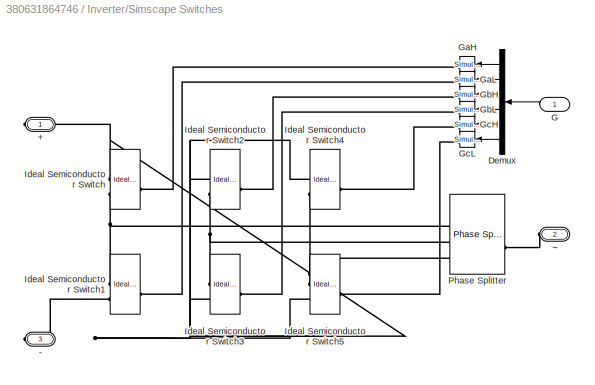
BLOCK [SubSystem] Inverter/Simscape Switches
  VariantControl = SimscapeSw
BLOCK [PMIOPort] Inverter/Simscape Switches/+
  Side = Right
BLOCK [PMIOPort] Inverter/Simscape Switches/-
  Port = 3
  Side = Right
BLOCK [Demux] Inverter/Simscape Switches/Demux
  Outputs = 6
BLOCK [Inport] Inverter/Simscape Switches/G
BLOCK [Reference] Inverter/Simscape Switches/GaH  REF=nesl_utility/Simulink-PS
Converter
  SourceBlock = nesl_utility/Simulink-PS\nConverter
  SourceType = Simulink-PS\nConverter
BLOCK [Reference] Inverter/Simscape Switches/GaL  REF=nesl_utility/Simulink-PS
Converter
  SourceBlock = nesl_utility/Simulink-PS\nConverter
  SourceType = Simulink-PS\nConverter
BLOCK [Reference] Inverter/Simscape Switches/GbH  REF=nesl_utility/Simulink-PS
Converter
  SourceBlock = nesl_utility/Simulink-PS\nConverter
  SourceType = Simulink-PS\nConverter
BLOCK [Reference] Inverter/Simscape Switches/GbL  REF=nesl_utility/Simulink-PS
Converter
  SourceBlock = nesl_utility/Simulink-PS\nConverter
  SourceType = Simulink-PS\nConverter
BLOCK [Reference] Inverter/Simscape Switches/GcH  REF=nesl_utility/Simulink-PS
Converter
  SourceBlock = nesl_utility/Simulink-PS\nConverter
  SourceType = Simulink-PS\nConverter
BLOCK [Reference] Inverter/Simscape Switches/GcL  REF=nesl_utility/Simulink-PS
Converter
  SourceBlock = nesl_utility/Simulink-PS\nConverter
  SourceType = Simulink-PS\nConverter
BLOCK [Reference] Inverter/Simscape Switches/Ideal Semiconductor Switch  REF=ee_lib/Semiconductors &
Converters/Ideal Semiconductor
Switch
  SourceBlock = ee_lib/Semiconductors &\nConverters/Ideal Semiconductor\nSwitch
  SourceType = Ideal Semiconductor\nSwitch
BLOCK [Reference] Inverter/Simscape Switches/Ideal Semiconductor Switch1  REF=ee_lib/Semiconductors &
Converters/Ideal Semiconductor
Switch
  SourceBlock = ee_lib/Semiconductors &\nConverters/Ideal Semiconductor\nSwitch
  SourceType = Ideal Semiconductor\nSwitch
BLOCK [Reference] Inverter/Simscape Switches/Ideal Semiconductor Switch2  REF=ee_lib/Semiconductors &
Converters/Ideal Semiconductor
Switch
  SourceBlock = ee_lib/Semiconductors &\nConverters/Ideal Semiconductor\nSwitch
  SourceType = Ideal Semiconductor\nSwitch
BLOCK [Reference] Inverter/Simscape Switches/Ideal Semiconductor Switch3  REF=ee_lib/Semiconductors &
Converters/Ideal Semiconductor
Switch
  SourceBlock = ee_lib/Semiconductors &\nConverters/Ideal Semiconductor\nSwitch
  SourceType = Ideal Semiconductor\nSwitch
BLOCK [Reference] Inverter/Simscape Switches/Ideal Semiconductor Switch4  REF=ee_lib/Semiconductors &
Converters/Ideal Semiconductor
Switch
  SourceBlock = ee_lib/Semiconductors &\nConverters/Ideal Semiconductor\nSwitch
  SourceType = Ideal Semiconductor\nSwitch
BLOCK [Reference] Inverter/Simscape Switches/Ideal Semiconductor Switch5  REF=ee_lib/Semiconductors &
Converters/Ideal Semiconductor
Switch
  SourceBlock = ee_lib/Semiconductors &\nConverters/Ideal Semiconductor\nSwitch
  SourceType = Ideal Semiconductor\nSwitch
BLOCK [Reference] Inverter/Simscape Switches/Phase Splitter  REF=ee_lib/Connectors &
References/Phase Splitter
  SourceBlock = ee_lib/Connectors &\nReferences/Phase Splitter
  SourceType = Phase Splitter
BLOCK [PMIOPort] Inverter/Simscape Switches/~
  Port = 2
  Side = Left
BLOCK [PMIOPort] Inverter/~
  Port = 3
  Side = Left
BLOCK [Reference] Mechanical Rotational Reference1  REF=fl_lib/Mechanical/Rotational Elements/Mechanical
Rotational Reference
  NameLocation = right
  SourceBlock = fl_lib/Mechanical/Rotational Elements/Mechanical\nRotational Reference
  SourceType = Mechanical\nRotational Reference
BLOCK [Reference] Motor & load inertia  REF=fl_lib/Mechanical/Rotational Elements/Inertia
  SourceBlock = fl_lib/Mechanical/Rotational Elements/Inertia
  SourceType = Inertia
BLOCK [SubSystem] PMSM controller
BLOCK [BusSelector] PMSM controller/Bus Selector
  OutputSignals = iabc [A],Reference,TqRef [N*m]
BLOCK [Demux] PMSM controller/Demux1
  Outputs = 2
BLOCK [Outport] PMSM controller/G
  VectorParamsAs1DForOutWhenUnconnected = off
BLOCK [Goto] PMSM controller/Goto
  GotoTag = wDemand
  NameLocation = top
  TagVisibility = global
BLOCK [Goto] PMSM controller/Goto1
  GotoTag = iMotor
  NameLocation = top
  TagVisibility = global
BLOCK [Goto] PMSM controller/Goto3
  GotoTag = trqDemand
  NameLocation = top
  TagVisibility = global
BLOCK [Reference] PMSM controller/PMSM Field-Oriented Control  REF=eePmsmFieldOrientedControl/PMSM Field-Oriented
Control
  SourceBlock = eePmsmFieldOrientedControl/PMSM Field-Oriented\nControl
  SourceType = PMSM Field-Oriented Control
BLOCK [RateLimiter] PMSM controller/Rate Limiter
  FallingSlewLimit = -Tmax/J
  NameLocation = top
  RisingSlewLimit = Tmax/J
  SampleTimeMode = inherited
BLOCK [Constant] PMSM controller/Vdc
  SampleTime = Tsc
  Value = 48
BLOCK [Inport] PMSM controller/i_abc
  Port = 3
BLOCK [Inport] PMSM controller/meas
BLOCK [Inport] PMSM controller/rpm
  Port = 2
BLOCK [Gain] PMSM controller/rpm -> rad//s [mech.]
  Gain = 2*pi/60
  NameLocation = top
BLOCK [Reference] Permanent Magnet Synchronous Motor  REF=ee_lib/Electromechanical/Permanent Magnet/PMSM
  SourceBlock = ee_lib/Electromechanical/Permanent Magnet/PMSM
  SourceType = PMSM
BLOCK [RateTransition] RT1
  OutPortSampleTime = Tsc
BLOCK [RateTransition] RT2
  OutPortSampleTime = Tsc
BLOCK [RateTransition] RT3
  OutPortSampleTime = Tsc
BLOCK [Scope] Scope
  Floating = off
  NumInputPorts = 4
  ScopeSpecificationString = Simulink.scopes.TimeScopeBlockCfg('CurrentConfiguration', extmgr.ConfigurationSet(extmgr.Configuration('Core','General UI',true),extmgr.Configuration('Core','Source UI',true),extmgr.Configuration('Sources','WiredSimulink',true),extmgr.Configuration('Visuals','Time Domain',true,'SerializedDisplays',{struct('MinYLimReal','-7.15561','MaxYLimReal','34.20543','YLabelReal','','MinYLimMag','0.00000','Max...<+3421ch>
BLOCK [SubSystem] Sensing currents
BLOCK [PMIOPort] Sensing currents/Conn1
  Side = Left
BLOCK [PMIOPort] Sensing currents/Conn2
  Port = 2
  Side = Right
BLOCK [Reference] Sensing currents/Current Sensor  REF=ee_lib/Sensors &
Transducers/Current Sensor
(Three-Phase)
  SourceBlock = ee_lib/Sensors &\nTransducers/Current Sensor\n(Three-Phase)
  SourceType = Current Sensor\n(Three-Phase)
BLOCK [Gain] Sensing currents/Gain
  Commented = through
  Gain = 1/sqrt(3)
BLOCK [Goto] Sensing currents/Goto
  GotoTag = i
  TagVisibility = global
BLOCK [Reference] Sensing currents/Iabc  REF=nesl_utility/PS-Simulink
Converter
  SourceBlock = nesl_utility/PS-Simulink\nConverter
  SourceType = PS-Simulink\nConverter
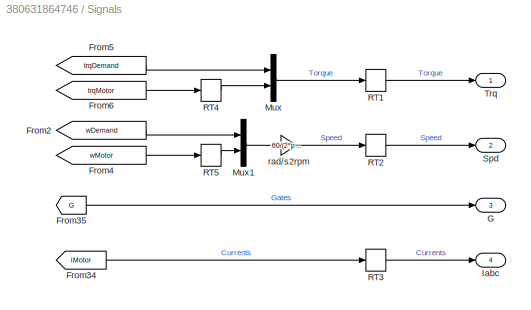
BLOCK [SubSystem] Signals 
BLOCK [From] Signals /From2
  GotoTag = wDemand
  TagVisibility = global
BLOCK [From] Signals /From34
  GotoTag = iMotor
  TagVisibility = global
BLOCK [From] Signals /From35
  GotoTag = G
  TagVisibility = global
BLOCK [From] Signals /From4
  GotoTag = wMotor
  TagVisibility = global
BLOCK [From] Signals /From5
  GotoTag = trqDemand
  TagVisibility = global
BLOCK [From] Signals /From6
  GotoTag = trqMotor
  TagVisibility = global
BLOCK [Outport] Signals /G
  Port = 3
  VectorParamsAs1DForOutWhenUnconnected = off
BLOCK [Outport] Signals /Iabc
  Port = 4
  VectorParamsAs1DForOutWhenUnconnected = off
BLOCK [Mux] Signals /Mux
  DisplayOption = bar
  Inputs = 2
BLOCK [Mux] Signals /Mux1
  DisplayOption = bar
  Inputs = 2
BLOCK [RateTransition] Signals /RT1
  OutPortSampleTime = Ts
BLOCK [RateTransition] Signals /RT2
  OutPortSampleTime = Ts
BLOCK [RateTransition] Signals /RT3
  OutPortSampleTime = Ts
BLOCK [RateTransition] Signals /RT4
  OutPortSampleTime = Tsc
BLOCK [RateTransition] Signals /RT5
  OutPortSampleTime = Tsc
BLOCK [Outport] Signals /Spd
  Port = 2
  VectorParamsAs1DForOutWhenUnconnected = off
BLOCK [Outport] Signals /Trq
  VectorParamsAs1DForOutWhenUnconnected = off
BLOCK [Gain] Signals /rad//s2rpm
  Gain = 60/(2*pi)
BLOCK [Reference] Solver Configuration  REF=nesl_utility/Solver
Configuration
  SourceBlock = nesl_utility/Solver\nConfiguration
  SourceType = Solver\nConfiguration
BLOCK [Step] Step
  After = 500
  SampleTime = Tsc
  Time = 0.1
BLOCK [Step] Step1
  Time = 1e-4
BLOCK [Switch] Switch
  Criteria = u2 ~= 0
  InputSameDT = off
  SaturateOnIntegerOverflow = off
ANNOTATION (root): <copyright redacted>
ANNOTATION (root): Three-Phase PMSM Drive
LINE Constant:1 -> Switch:3
LINE Encoder/Mux:1 -> Encoder/meas:1
NET Encoder/omegaMotor:1 -> Encoder/Goto1:1, Encoder/Mux:1
LINE Encoder/thetaMotor:1 -> Encoder/Mux:2
LINE Encoder/trqMotor:1 -> Encoder/Goto2:1
LINE Encoder:1 -> Goto:1
LINE From1:1 -> RT3:1
LINE From35:1 -> Inverter:1
LINE From:1 -> RT1:1
LINE Inverter/Pejovic w//SCA/Demux:1 -> Inverter/Pejovic w//SCA/Switch1:1
LINE Inverter/Pejovic w//SCA/Demux:2 -> Inverter/Pejovic w//SCA/Switch2:1
LINE Inverter/Pejovic w//SCA/Demux:3 -> Inverter/Pejovic w//SCA/Switch3:1
LINE Inverter/Pejovic w//SCA/Demux:4 -> Inverter/Pejovic w//SCA/Switch4:1
LINE Inverter/Pejovic w//SCA/Demux:5 -> Inverter/Pejovic w//SCA/Switch5:1
LINE Inverter/Pejovic w//SCA/Demux:6 -> Inverter/Pejovic w//SCA/Switch6:1
LINE Inverter/Pejovic w//SCA/G:1 -> Inverter/Pejovic w//SCA/Demux:1
LINE Inverter/Pejovic w//SCA/Switch1/Controller:1 -> Inverter/Pejovic w//SCA/Switch1/ic_in:1
LINE Inverter/Pejovic w//SCA/Switch1/G:1 -> Inverter/Pejovic w//SCA/Switch1/Controller:3
LINE Inverter/Pejovic w//SCA/Switch1/is_out:1 -> Inverter/Pejovic w//SCA/Switch1/Controller:2
LINE Inverter/Pejovic w//SCA/Switch1/vs_out:1 -> Inverter/Pejovic w//SCA/Switch1/Controller:1
LINE Inverter/Pejovic w//SCA/Switch2/Controller:1 -> Inverter/Pejovic w//SCA/Switch2/ic_in:1
LINE Inverter/Pejovic w//SCA/Switch2/G:1 -> Inverter/Pejovic w//SCA/Switch2/Controller:3
LINE Inverter/Pejovic w//SCA/Switch2/is_out:1 -> Inverter/Pejovic w//SCA/Switch2/Controller:2
LINE Inverter/Pejovic w//SCA/Switch2/vs_out:1 -> Inverter/Pejovic w//SCA/Switch2/Controller:1
LINE Inverter/Pejovic w//SCA/Switch3/Controller:1 -> Inverter/Pejovic w//SCA/Switch3/ic_in:1
LINE Inverter/Pejovic w//SCA/Switch3/G:1 -> Inverter/Pejovic w//SCA/Switch3/Controller:3
LINE Inverter/Pejovic w//SCA/Switch3/is_out:1 -> Inverter/Pejovic w//SCA/Switch3/Controller:2
LINE Inverter/Pejovic w//SCA/Switch3/vs_out:1 -> Inverter/Pejovic w//SCA/Switch3/Controller:1
LINE Inverter/Pejovic w//SCA/Switch4/Controller:1 -> Inverter/Pejovic w//SCA/Switch4/ic_in:1
LINE Inverter/Pejovic w//SCA/Switch4/G:1 -> Inverter/Pejovic w//SCA/Switch4/Controller:3
LINE Inverter/Pejovic w//SCA/Switch4/is_out:1 -> Inverter/Pejovic w//SCA/Switch4/Controller:2
LINE Inverter/Pejovic w//SCA/Switch4/vs_out:1 -> Inverter/Pejovic w//SCA/Switch4/Controller:1
LINE Inverter/Pejovic w//SCA/Switch5/Controller:1 -> Inverter/Pejovic w//SCA/Switch5/ic_in:1
LINE Inverter/Pejovic w//SCA/Switch5/G:1 -> Inverter/Pejovic w//SCA/Switch5/Controller:3
LINE Inverter/Pejovic w//SCA/Switch5/is_out:1 -> Inverter/Pejovic w//SCA/Switch5/Controller:2
LINE Inverter/Pejovic w//SCA/Switch5/vs_out:1 -> Inverter/Pejovic w//SCA/Switch5/Controller:1
LINE Inverter/Pejovic w//SCA/Switch6/Controller:1 -> Inverter/Pejovic w//SCA/Switch6/ic_in:1
LINE Inverter/Pejovic w//SCA/Switch6/G:1 -> Inverter/Pejovic w//SCA/Switch6/Controller:3
LINE Inverter/Pejovic w//SCA/Switch6/is_out:1 -> Inverter/Pejovic w//SCA/Switch6/Controller:2
LINE Inverter/Pejovic w//SCA/Switch6/vs_out:1 -> Inverter/Pejovic w//SCA/Switch6/Controller:1
LINE Inverter/Pejovic/Demux:1 -> Inverter/Pejovic/Switch1:1
LINE Inverter/Pejovic/Demux:2 -> Inverter/Pejovic/Switch2:1
LINE Inverter/Pejovic/Demux:3 -> Inverter/Pejovic/Switch3:1
LINE Inverter/Pejovic/Demux:4 -> Inverter/Pejovic/Switch4:1
LINE Inverter/Pejovic/Demux:5 -> Inverter/Pejovic/Switch5:1
LINE Inverter/Pejovic/Demux:6 -> Inverter/Pejovic/Switch6:1
LINE Inverter/Pejovic/G:1 -> Inverter/Pejovic/Demux:1
LINE Inverter/Pejovic/Switch1/Controller:1 -> Inverter/Pejovic/Switch1/ic_in:1
LINE Inverter/Pejovic/Switch1/G:1 -> Inverter/Pejovic/Switch1/Controller:3
LINE Inverter/Pejovic/Switch1/is_out:1 -> Inverter/Pejovic/Switch1/Controller:2
LINE Inverter/Pejovic/Switch1/vs_out:1 -> Inverter/Pejovic/Switch1/Controller:1
LINE Inverter/Pejovic/Switch2/Controller:1 -> Inverter/Pejovic/Switch2/ic_in:1
LINE Inverter/Pejovic/Switch2/G:1 -> Inverter/Pejovic/Switch2/Controller:3
LINE Inverter/Pejovic/Switch2/is_out:1 -> Inverter/Pejovic/Switch2/Controller:2
LINE Inverter/Pejovic/Switch2/vs_out:1 -> Inverter/Pejovic/Switch2/Controller:1
LINE Inverter/Pejovic/Switch3/Controller:1 -> Inverter/Pejovic/Switch3/ic_in:1
LINE Inverter/Pejovic/Switch3/G:1 -> Inverter/Pejovic/Switch3/Controller:3
LINE Inverter/Pejovic/Switch3/is_out:1 -> Inverter/Pejovic/Switch3/Controller:2
LINE Inverter/Pejovic/Switch3/vs_out:1 -> Inverter/Pejovic/Switch3/Controller:1
LINE Inverter/Pejovic/Switch4/Controller:1 -> Inverter/Pejovic/Switch4/ic_in:1
LINE Inverter/Pejovic/Switch4/G:1 -> Inverter/Pejovic/Switch4/Controller:3
LINE Inverter/Pejovic/Switch4/is_out:1 -> Inverter/Pejovic/Switch4/Controller:2
LINE Inverter/Pejovic/Switch4/vs_out:1 -> Inverter/Pejovic/Switch4/Controller:1
LINE Inverter/Pejovic/Switch5/Controller:1 -> Inverter/Pejovic/Switch5/ic_in:1
LINE Inverter/Pejovic/Switch5/G:1 -> Inverter/Pejovic/Switch5/Controller:3
LINE Inverter/Pejovic/Switch5/is_out:1 -> Inverter/Pejovic/Switch5/Controller:2
LINE Inverter/Pejovic/Switch5/vs_out:1 -> Inverter/Pejovic/Switch5/Controller:1
LINE Inverter/Pejovic/Switch6/Controller:1 -> Inverter/Pejovic/Switch6/ic_in:1
LINE Inverter/Pejovic/Switch6/G:1 -> Inverter/Pejovic/Switch6/Controller:3
LINE Inverter/Pejovic/Switch6/is_out:1 -> Inverter/Pejovic/Switch6/Controller:2
LINE Inverter/Pejovic/Switch6/vs_out:1 -> Inverter/Pejovic/Switch6/Controller:1
LINE Inverter/Simscape Converter/G:1 -> Inverter/Simscape Converter/Gates:1
LINE Inverter/Simscape Converter/Gates/Demux:1 -> Inverter/Simscape Converter/Gates/GaH:1
LINE Inverter/Simscape Converter/Gates/Demux:2 -> Inverter/Simscape Converter/Gates/GaL:1
LINE Inverter/Simscape Converter/Gates/Demux:3 -> Inverter/Simscape Converter/Gates/GbH:1
LINE Inverter/Simscape Converter/Gates/Demux:4 -> Inverter/Simscape Converter/Gates/GbL:1
LINE Inverter/Simscape Converter/Gates/Demux:5 -> Inverter/Simscape Converter/Gates/GcH:1
LINE Inverter/Simscape Converter/Gates/Demux:6 -> Inverter/Simscape Converter/Gates/GcL:1
LINE Inverter/Simscape Converter/Gates/Gates Simulink:1 -> Inverter/Simscape Converter/Gates/Demux:1
LINE Inverter/Simscape Switches/Demux:1 -> Inverter/Simscape Switches/GaH:1
LINE Inverter/Simscape Switches/Demux:2 -> Inverter/Simscape Switches/GaL:1
LINE Inverter/Simscape Switches/Demux:3 -> Inverter/Simscape Switches/GbH:1
LINE Inverter/Simscape Switches/Demux:4 -> Inverter/Simscape Switches/GbL:1
LINE Inverter/Simscape Switches/Demux:5 -> Inverter/Simscape Switches/GcH:1
LINE Inverter/Simscape Switches/Demux:6 -> Inverter/Simscape Switches/GcL:1
LINE Inverter/Simscape Switches/G:1 -> Inverter/Simscape Switches/Demux:1
LINE PMSM controller/Bus Selector:1 -> PMSM controller/Goto1:1
LINE PMSM controller/Bus Selector:2 -> PMSM controller/Goto:1
LINE PMSM controller/Bus Selector:3 -> PMSM controller/Goto3:1
LINE PMSM controller/Demux1:1 -> PMSM controller/PMSM Field-Oriented Control:3
LINE PMSM controller/Demux1:2 -> PMSM controller/PMSM Field-Oriented Control:4
LINE PMSM controller/PMSM Field-Oriented Control:1 -> PMSM controller/G:1
LINE PMSM controller/PMSM Field-Oriented Control:2 -> PMSM controller/Bus Selector:1
LINE PMSM controller/Rate Limiter:1 -> PMSM controller/PMSM Field-Oriented Control:1
LINE PMSM controller/Vdc:1 -> PMSM controller/PMSM Field-Oriented Control:5
LINE PMSM controller/i_abc:1 -> PMSM controller/PMSM Field-Oriented Control:2
LINE PMSM controller/meas:1 -> PMSM controller/Demux1:1
LINE PMSM controller/rpm -> rad//s [mech.]:1 -> PMSM controller/Rate Limiter:1
LINE PMSM controller/rpm:1 -> PMSM controller/rpm -> rad//s [mech.]:1
LINE PMSM controller:1 -> Switch:1
LINE RT1:1 -> PMSM controller:3
LINE RT2:1 -> PMSM controller:2
LINE RT3:1 -> PMSM controller:1
LINE Sensing currents/Gain:1 -> Sensing currents/Goto:1
LINE Sensing currents/Iabc:1 -> Sensing currents/Gain:1
LINE Signals /From2:1 -> Signals /Mux1:1
LINE Signals /From34:1 -> Signals /RT3:1
LINE Signals /From35:1 -> Signals /G:1
LINE Signals /From4:1 -> Signals /RT5:1
LINE Signals /From5:1 -> Signals /Mux:1
LINE Signals /From6:1 -> Signals /RT4:1
LINE Signals /Mux1:1 -> Signals /rad//s2rpm:1
LINE Signals /Mux:1 -> Signals /RT1:1
LINE Signals /RT1:1 -> Signals /Trq:1
LINE Signals /RT2:1 -> Signals /Spd:1
LINE Signals /RT3:1 -> Signals /Iabc:1
LINE Signals /RT4:1 -> Signals /Mux:2
LINE Signals /RT5:1 -> Signals /Mux1:2
LINE Signals /rad//s2rpm:1 -> Signals /RT2:1
LINE Signals :1 -> Scope:1
LINE Signals :2 -> Scope:2
LINE Signals :3 -> Scope:3
LINE Signals :4 -> Scope:4
LINE Step1:1 -> Switch:2
LINE Step:1 -> RT2:1
LINE Switch:1 -> Goto1:1
PNET net1: DC Voltage Source:LConn1 -- Inverter:RConn1 -- Solver Configuration:RConn1
PNET net2: DC Voltage Source:RConn1 -- Electrical Reference:LConn1 -- Inverter:RConn2
PLINE Encoder/1L:RConn1 -- Encoder/Ideal Torque Sensor:LConn1
PNET net3: Encoder/1R:RConn1 -- Encoder/Ideal Rotational Motion Sensor:LConn1 -- Encoder/Ideal Torque Sensor:RConn1
PNET net4: Encoder/2L:RConn1 -- Encoder/2R:RConn1 -- Encoder/Ideal Rotational Motion Sensor:RConn1
PLINE Encoder/Ideal Rotational Motion Sensor:RConn2 -- Encoder/omegaMotor:LConn1
PLINE Encoder/Ideal Rotational Motion Sensor:RConn3 -- Encoder/thetaMotor:LConn1
PLINE Encoder/Ideal Torque Sensor:RConn2 -- Encoder/trqMotor:LConn1
PLINE Encoder:LConn1 -- Permanent Magnet Synchronous Motor:RConn1
PLINE Encoder:LConn2 -- Permanent Magnet Synchronous Motor:RConn2
PLINE Encoder:RConn1 -- Motor & load inertia:LConn1
PLINE Encoder:RConn2 -- Mechanical Rotational Reference1:LConn1
PNET net5: Inverter/Pejovic w//SCA/+:RConn1 -- Inverter/Pejovic w//SCA/Switch1:LConn1 -- Inverter/Pejovic w//SCA/Switch3:LConn1 -- Inverter/Pejovic w//SCA/Switch5:LConn1
PNET net6: Inverter/Pejovic w//SCA/-:RConn1 -- Inverter/Pejovic w//SCA/Switch2:RConn1 -- Inverter/Pejovic w//SCA/Switch4:RConn1 -- Inverter/Pejovic w//SCA/Switch6:RConn1
PLINE Inverter/Pejovic w//SCA/Phase Splitter:LConn1 -- Inverter/Pejovic w//SCA/~:RConn1
PNET net7: Inverter/Pejovic w//SCA/Phase Splitter:RConn1 -- Inverter/Pejovic w//SCA/Switch1:RConn1 -- Inverter/Pejovic w//SCA/Switch2:LConn1
PNET net8: Inverter/Pejovic w//SCA/Phase Splitter:RConn2 -- Inverter/Pejovic w//SCA/Switch3:RConn1 -- Inverter/Pejovic w//SCA/Switch4:LConn1
PNET net9: Inverter/Pejovic w//SCA/Phase Splitter:RConn3 -- Inverter/Pejovic w//SCA/Switch5:RConn1 -- Inverter/Pejovic w//SCA/Switch6:LConn1
PNET net10: Inverter/Pejovic w//SCA/Switch1/+:RConn1 -- Inverter/Pejovic w//SCA/Switch1/is:LConn1 -- Inverter/Pejovic w//SCA/Switch1/vs:LConn1
PNET net11: Inverter/Pejovic w//SCA/Switch1/-:RConn1 -- Inverter/Pejovic w//SCA/Switch1/Gs:RConn1 -- Inverter/Pejovic w//SCA/Switch1/ic:RConn2 -- Inverter/Pejovic w//SCA/Switch1/vs:RConn2
PNET net12: Inverter/Pejovic w//SCA/Switch1/Gs:LConn1 -- Inverter/Pejovic w//SCA/Switch1/ic:LConn1 -- Inverter/Pejovic w//SCA/Switch1/is:RConn2
PLINE Inverter/Pejovic w//SCA/Switch1/ic:RConn1 -- Inverter/Pejovic w//SCA/Switch1/ic_in:RConn1
PLINE Inverter/Pejovic w//SCA/Switch1/is:RConn1 -- Inverter/Pejovic w//SCA/Switch1/is_out:LConn1
PLINE Inverter/Pejovic w//SCA/Switch1/vs:RConn1 -- Inverter/Pejovic w//SCA/Switch1/vs_out:LConn1
PNET net13: Inverter/Pejovic w//SCA/Switch2/+:RConn1 -- Inverter/Pejovic w//SCA/Switch2/is:LConn1 -- Inverter/Pejovic w//SCA/Switch2/vs:LConn1
PNET net14: Inverter/Pejovic w//SCA/Switch2/-:RConn1 -- Inverter/Pejovic w//SCA/Switch2/Gs:RConn1 -- Inverter/Pejovic w//SCA/Switch2/ic:RConn2 -- Inverter/Pejovic w//SCA/Switch2/vs:RConn2
PNET net15: Inverter/Pejovic w//SCA/Switch2/Gs:LConn1 -- Inverter/Pejovic w//SCA/Switch2/ic:LConn1 -- Inverter/Pejovic w//SCA/Switch2/is:RConn2
PLINE Inverter/Pejovic w//SCA/Switch2/ic:RConn1 -- Inverter/Pejovic w//SCA/Switch2/ic_in:RConn1
PLINE Inverter/Pejovic w//SCA/Switch2/is:RConn1 -- Inverter/Pejovic w//SCA/Switch2/is_out:LConn1
PLINE Inverter/Pejovic w//SCA/Switch2/vs:RConn1 -- Inverter/Pejovic w//SCA/Switch2/vs_out:LConn1
PNET net16: Inverter/Pejovic w//SCA/Switch3/+:RConn1 -- Inverter/Pejovic w//SCA/Switch3/is:LConn1 -- Inverter/Pejovic w//SCA/Switch3/vs:LConn1
PNET net17: Inverter/Pejovic w//SCA/Switch3/-:RConn1 -- Inverter/Pejovic w//SCA/Switch3/Gs:RConn1 -- Inverter/Pejovic w//SCA/Switch3/ic:RConn2 -- Inverter/Pejovic w//SCA/Switch3/vs:RConn2
PNET net18: Inverter/Pejovic w//SCA/Switch3/Gs:LConn1 -- Inverter/Pejovic w//SCA/Switch3/ic:LConn1 -- Inverter/Pejovic w//SCA/Switch3/is:RConn2
PLINE Inverter/Pejovic w//SCA/Switch3/ic:RConn1 -- Inverter/Pejovic w//SCA/Switch3/ic_in:RConn1
PLINE Inverter/Pejovic w//SCA/Switch3/is:RConn1 -- Inverter/Pejovic w//SCA/Switch3/is_out:LConn1
PLINE Inverter/Pejovic w//SCA/Switch3/vs:RConn1 -- Inverter/Pejovic w//SCA/Switch3/vs_out:LConn1
PNET net19: Inverter/Pejovic w//SCA/Switch4/+:RConn1 -- Inverter/Pejovic w//SCA/Switch4/is:LConn1 -- Inverter/Pejovic w//SCA/Switch4/vs:LConn1
PNET net20: Inverter/Pejovic w//SCA/Switch4/-:RConn1 -- Inverter/Pejovic w//SCA/Switch4/Gs:RConn1 -- Inverter/Pejovic w//SCA/Switch4/ic:RConn2 -- Inverter/Pejovic w//SCA/Switch4/vs:RConn2
PNET net21: Inverter/Pejovic w//SCA/Switch4/Gs:LConn1 -- Inverter/Pejovic w//SCA/Switch4/ic:LConn1 -- Inverter/Pejovic w//SCA/Switch4/is:RConn2
PLINE Inverter/Pejovic w//SCA/Switch4/ic:RConn1 -- Inverter/Pejovic w//SCA/Switch4/ic_in:RConn1
PLINE Inverter/Pejovic w//SCA/Switch4/is:RConn1 -- Inverter/Pejovic w//SCA/Switch4/is_out:LConn1
PLINE Inverter/Pejovic w//SCA/Switch4/vs:RConn1 -- Inverter/Pejovic w//SCA/Switch4/vs_out:LConn1
PNET net22: Inverter/Pejovic w//SCA/Switch5/+:RConn1 -- Inverter/Pejovic w//SCA/Switch5/is:LConn1 -- Inverter/Pejovic w//SCA/Switch5/vs:LConn1
PNET net23: Inverter/Pejovic w//SCA/Switch5/-:RConn1 -- Inverter/Pejovic w//SCA/Switch5/Gs:RConn1 -- Inverter/Pejovic w//SCA/Switch5/ic:RConn2 -- Inverter/Pejovic w//SCA/Switch5/vs:RConn2
PNET net24: Inverter/Pejovic w//SCA/Switch5/Gs:LConn1 -- Inverter/Pejovic w//SCA/Switch5/ic:LConn1 -- Inverter/Pejovic w//SCA/Switch5/is:RConn2
PLINE Inverter/Pejovic w//SCA/Switch5/ic:RConn1 -- Inverter/Pejovic w//SCA/Switch5/ic_in:RConn1
PLINE Inverter/Pejovic w//SCA/Switch5/is:RConn1 -- Inverter/Pejovic w//SCA/Switch5/is_out:LConn1
PLINE Inverter/Pejovic w//SCA/Switch5/vs:RConn1 -- Inverter/Pejovic w//SCA/Switch5/vs_out:LConn1
PNET net25: Inverter/Pejovic w//SCA/Switch6/+:RConn1 -- Inverter/Pejovic w//SCA/Switch6/is:LConn1 -- Inverter/Pejovic w//SCA/Switch6/vs:LConn1
PNET net26: Inverter/Pejovic w//SCA/Switch6/-:RConn1 -- Inverter/Pejovic w//SCA/Switch6/Gs:RConn1 -- Inverter/Pejovic w//SCA/Switch6/ic:RConn2 -- Inverter/Pejovic w//SCA/Switch6/vs:RConn2
PNET net27: Inverter/Pejovic w//SCA/Switch6/Gs:LConn1 -- Inverter/Pejovic w//SCA/Switch6/ic:LConn1 -- Inverter/Pejovic w//SCA/Switch6/is:RConn2
PLINE Inverter/Pejovic w//SCA/Switch6/ic:RConn1 -- Inverter/Pejovic w//SCA/Switch6/ic_in:RConn1
PLINE Inverter/Pejovic w//SCA/Switch6/is:RConn1 -- Inverter/Pejovic w//SCA/Switch6/is_out:LConn1
PLINE Inverter/Pejovic w//SCA/Switch6/vs:RConn1 -- Inverter/Pejovic w//SCA/Switch6/vs_out:LConn1
PNET net28: Inverter/Pejovic/+:RConn1 -- Inverter/Pejovic/Switch1:LConn1 -- Inverter/Pejovic/Switch3:LConn1 -- Inverter/Pejovic/Switch5:LConn1
PNET net29: Inverter/Pejovic/-:RConn1 -- Inverter/Pejovic/Switch2:RConn1 -- Inverter/Pejovic/Switch4:RConn1 -- Inverter/Pejovic/Switch6:RConn1
PLINE Inverter/Pejovic/Phase Splitter:LConn1 -- Inverter/Pejovic/~:RConn1
PNET net30: Inverter/Pejovic/Phase Splitter:RConn1 -- Inverter/Pejovic/Switch1:RConn1 -- Inverter/Pejovic/Switch2:LConn1
PNET net31: Inverter/Pejovic/Phase Splitter:RConn2 -- Inverter/Pejovic/Switch3:RConn1 -- Inverter/Pejovic/Switch4:LConn1
PNET net32: Inverter/Pejovic/Phase Splitter:RConn3 -- Inverter/Pejovic/Switch5:RConn1 -- Inverter/Pejovic/Switch6:LConn1
PNET net33: Inverter/Pejovic/Switch1/+:RConn1 -- Inverter/Pejovic/Switch1/is:LConn1 -- Inverter/Pejovic/Switch1/vs:LConn1
PNET net34: Inverter/Pejovic/Switch1/-:RConn1 -- Inverter/Pejovic/Switch1/Gs:RConn1 -- Inverter/Pejovic/Switch1/ic:RConn2 -- Inverter/Pejovic/Switch1/vs:RConn2
PNET net35: Inverter/Pejovic/Switch1/Gs:LConn1 -- Inverter/Pejovic/Switch1/ic:LConn1 -- Inverter/Pejovic/Switch1/is:RConn2
PLINE Inverter/Pejovic/Switch1/ic:RConn1 -- Inverter/Pejovic/Switch1/ic_in:RConn1
PLINE Inverter/Pejovic/Switch1/is:RConn1 -- Inverter/Pejovic/Switch1/is_out:LConn1
PLINE Inverter/Pejovic/Switch1/vs:RConn1 -- Inverter/Pejovic/Switch1/vs_out:LConn1
PNET net36: Inverter/Pejovic/Switch2/+:RConn1 -- Inverter/Pejovic/Switch2/is:LConn1 -- Inverter/Pejovic/Switch2/vs:LConn1
PNET net37: Inverter/Pejovic/Switch2/-:RConn1 -- Inverter/Pejovic/Switch2/Gs:RConn1 -- Inverter/Pejovic/Switch2/ic:RConn2 -- Inverter/Pejovic/Switch2/vs:RConn2
PNET net38: Inverter/Pejovic/Switch2/Gs:LConn1 -- Inverter/Pejovic/Switch2/ic:LConn1 -- Inverter/Pejovic/Switch2/is:RConn2
PLINE Inverter/Pejovic/Switch2/ic:RConn1 -- Inverter/Pejovic/Switch2/ic_in:RConn1
PLINE Inverter/Pejovic/Switch2/is:RConn1 -- Inverter/Pejovic/Switch2/is_out:LConn1
PLINE Inverter/Pejovic/Switch2/vs:RConn1 -- Inverter/Pejovic/Switch2/vs_out:LConn1
PNET net39: Inverter/Pejovic/Switch3/+:RConn1 -- Inverter/Pejovic/Switch3/is:LConn1 -- Inverter/Pejovic/Switch3/vs:LConn1
PNET net40: Inverter/Pejovic/Switch3/-:RConn1 -- Inverter/Pejovic/Switch3/Gs:RConn1 -- Inverter/Pejovic/Switch3/ic:RConn2 -- Inverter/Pejovic/Switch3/vs:RConn2
PNET net41: Inverter/Pejovic/Switch3/Gs:LConn1 -- Inverter/Pejovic/Switch3/ic:LConn1 -- Inverter/Pejovic/Switch3/is:RConn2
PLINE Inverter/Pejovic/Switch3/ic:RConn1 -- Inverter/Pejovic/Switch3/ic_in:RConn1
PLINE Inverter/Pejovic/Switch3/is:RConn1 -- Inverter/Pejovic/Switch3/is_out:LConn1
PLINE Inverter/Pejovic/Switch3/vs:RConn1 -- Inverter/Pejovic/Switch3/vs_out:LConn1
PNET net42: Inverter/Pejovic/Switch4/+:RConn1 -- Inverter/Pejovic/Switch4/is:LConn1 -- Inverter/Pejovic/Switch4/vs:LConn1
PNET net43: Inverter/Pejovic/Switch4/-:RConn1 -- Inverter/Pejovic/Switch4/Gs:RConn1 -- Inverter/Pejovic/Switch4/ic:RConn2 -- Inverter/Pejovic/Switch4/vs:RConn2
PNET net44: Inverter/Pejovic/Switch4/Gs:LConn1 -- Inverter/Pejovic/Switch4/ic:LConn1 -- Inverter/Pejovic/Switch4/is:RConn2
PLINE Inverter/Pejovic/Switch4/ic:RConn1 -- Inverter/Pejovic/Switch4/ic_in:RConn1
PLINE Inverter/Pejovic/Switch4/is:RConn1 -- Inverter/Pejovic/Switch4/is_out:LConn1
PLINE Inverter/Pejovic/Switch4/vs:RConn1 -- Inverter/Pejovic/Switch4/vs_out:LConn1
PNET net45: Inverter/Pejovic/Switch5/+:RConn1 -- Inverter/Pejovic/Switch5/is:LConn1 -- Inverter/Pejovic/Switch5/vs:LConn1
PNET net46: Inverter/Pejovic/Switch5/-:RConn1 -- Inverter/Pejovic/Switch5/Gs:RConn1 -- Inverter/Pejovic/Switch5/ic:RConn2 -- Inverter/Pejovic/Switch5/vs:RConn2
PNET net47: Inverter/Pejovic/Switch5/Gs:LConn1 -- Inverter/Pejovic/Switch5/ic:LConn1 -- Inverter/Pejovic/Switch5/is:RConn2
PLINE Inverter/Pejovic/Switch5/ic:RConn1 -- Inverter/Pejovic/Switch5/ic_in:RConn1
PLINE Inverter/Pejovic/Switch5/is:RConn1 -- Inverter/Pejovic/Switch5/is_out:LConn1
PLINE Inverter/Pejovic/Switch5/vs:RConn1 -- Inverter/Pejovic/Switch5/vs_out:LConn1
PNET net48: Inverter/Pejovic/Switch6/+:RConn1 -- Inverter/Pejovic/Switch6/is:LConn1 -- Inverter/Pejovic/Switch6/vs:LConn1
PNET net49: Inverter/Pejovic/Switch6/-:RConn1 -- Inverter/Pejovic/Switch6/Gs:RConn1 -- Inverter/Pejovic/Switch6/ic:RConn2 -- Inverter/Pejovic/Switch6/vs:RConn2
PNET net50: Inverter/Pejovic/Switch6/Gs:LConn1 -- Inverter/Pejovic/Switch6/ic:LConn1 -- Inverter/Pejovic/Switch6/is:RConn2
PLINE Inverter/Pejovic/Switch6/ic:RConn1 -- Inverter/Pejovic/Switch6/ic_in:RConn1
PLINE Inverter/Pejovic/Switch6/is:RConn1 -- Inverter/Pejovic/Switch6/is_out:LConn1
PLINE Inverter/Pejovic/Switch6/vs:RConn1 -- Inverter/Pejovic/Switch6/vs_out:LConn1
PLINE Inverter/Simscape Converter/+:RConn1 -- Inverter/Simscape Converter/Converter (Three-Phase):RConn1
PLINE Inverter/Simscape Converter/-:RConn1 -- Inverter/Simscape Converter/Converter (Three-Phase):RConn2
PLINE Inverter/Simscape Converter/Converter (Three-Phase):LConn1 -- Inverter/Simscape Converter/Gates:RConn1
PLINE Inverter/Simscape Converter/Converter (Three-Phase):LConn2 -- Inverter/Simscape Converter/~:RConn1
PLINE Inverter/Simscape Converter/Gates/GaH:RConn1 -- Inverter/Simscape Converter/Gates/Six-Pulse Gate Multiplexer:LConn1
PLINE Inverter/Simscape Converter/Gates/GaL:RConn1 -- Inverter/Simscape Converter/Gates/Six-Pulse Gate Multiplexer:LConn2
PLINE Inverter/Simscape Converter/Gates/Gates PS:RConn1 -- Inverter/Simscape Converter/Gates/Six-Pulse Gate Multiplexer:RConn1
PLINE Inverter/Simscape Converter/Gates/GbH:RConn1 -- Inverter/Simscape Converter/Gates/Six-Pulse Gate Multiplexer:LConn3
PLINE Inverter/Simscape Converter/Gates/GbL:RConn1 -- Inverter/Simscape Converter/Gates/Six-Pulse Gate Multiplexer:LConn4
PLINE Inverter/Simscape Converter/Gates/GcH:RConn1 -- Inverter/Simscape Converter/Gates/Six-Pulse Gate Multiplexer:LConn5
PLINE Inverter/Simscape Converter/Gates/GcL:RConn1 -- Inverter/Simscape Converter/Gates/Six-Pulse Gate Multiplexer:LConn6
PNET net51: Inverter/Simscape Switches/+:RConn1 -- Inverter/Simscape Switches/Ideal Semiconductor Switch2:RConn1 -- Inverter/Simscape Switches/Ideal Semiconductor Switch4:RConn1 -- Inverter/Simscape Switches/Ideal Semiconductor Switch:RConn1
PNET net52: Inverter/Simscape Switches/-:RConn1 -- Inverter/Simscape Switches/Ideal Semiconductor Switch1:RConn2 -- Inverter/Simscape Switches/Ideal Semiconductor Switch3:RConn2 -- Inverter/Simscape Switches/Ideal Semiconductor Switch5:RConn2
PLINE Inverter/Simscape Switches/GaH:RConn1 -- Inverter/Simscape Switches/Ideal Semiconductor Switch:LConn1
PLINE Inverter/Simscape Switches/GaL:RConn1 -- Inverter/Simscape Switches/Ideal Semiconductor Switch1:LConn1
PLINE Inverter/Simscape Switches/GbH:RConn1 -- Inverter/Simscape Switches/Ideal Semiconductor Switch2:LConn1
PLINE Inverter/Simscape Switches/GbL:RConn1 -- Inverter/Simscape Switches/Ideal Semiconductor Switch3:LConn1
PLINE Inverter/Simscape Switches/GcH:RConn1 -- Inverter/Simscape Switches/Ideal Semiconductor Switch4:LConn1
PLINE Inverter/Simscape Switches/GcL:RConn1 -- Inverter/Simscape Switches/Ideal Semiconductor Switch5:LConn1
PNET net53: Inverter/Simscape Switches/Ideal Semiconductor Switch1:RConn1 -- Inverter/Simscape Switches/Ideal Semiconductor Switch:RConn2 -- Inverter/Simscape Switches/Phase Splitter:RConn1
PNET net54: Inverter/Simscape Switches/Ideal Semiconductor Switch2:RConn2 -- Inverter/Simscape Switches/Ideal Semiconductor Switch3:RConn1 -- Inverter/Simscape Switches/Phase Splitter:RConn2
PNET net55: Inverter/Simscape Switches/Ideal Semiconductor Switch4:RConn2 -- Inverter/Simscape Switches/Ideal Semiconductor Switch5:RConn1 -- Inverter/Simscape Switches/Phase Splitter:RConn3
PLINE Inverter/Simscape Switches/Phase Splitter:LConn1 -- Inverter/Simscape Switches/~:RConn1
PLINE Inverter:LConn1 -- Sensing currents:LConn1
PLINE Permanent Magnet Synchronous Motor:LConn1 -- Sensing currents:RConn1
PLINE Sensing currents/Conn1:RConn1 -- Sensing currents/Current Sensor:LConn1
PLINE Sensing currents/Conn2:RConn1 -- Sensing currents/Current Sensor:RConn2
PLINE Sensing currents/Current Sensor:RConn1 -- Sensing currents/Iabc:LConn1
note: NET lines group one-source signal fan-out (src -> all destinations, sorted); 1:1 wires keep LINE; PNET lines group multi-terminal physical nets as a canonical sorted terminal list (undirected conserving connections); 2-terminal nets keep the pairwise PLINE form
